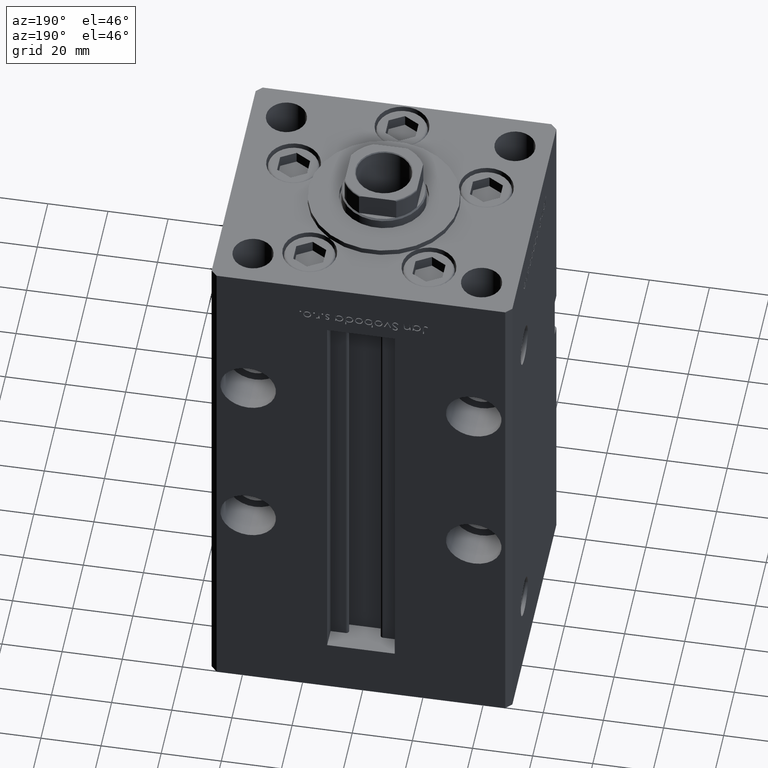
[diagram: clean part render]
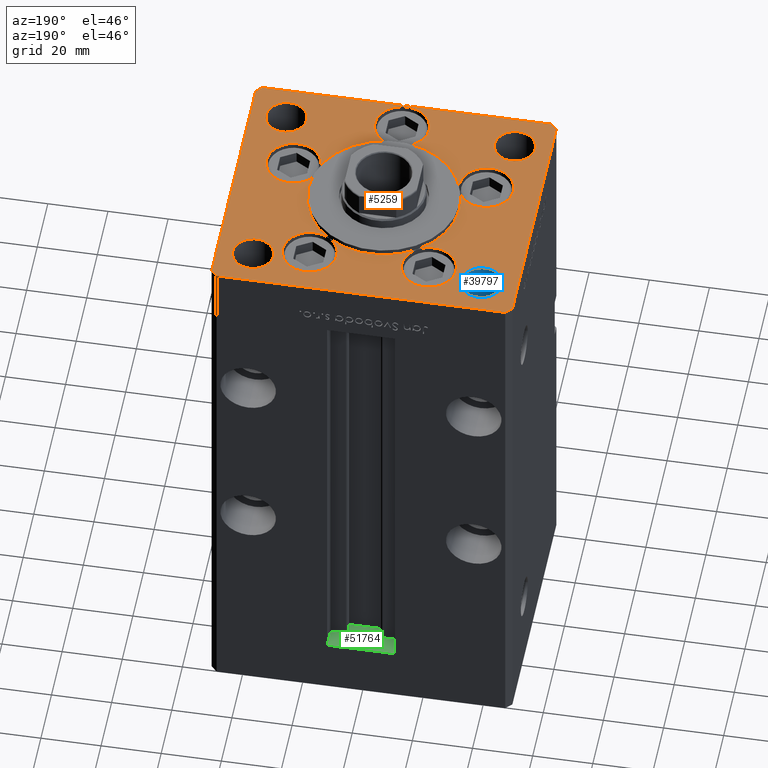
[diagram: same view with three faces highlighted in distinct colors, each labeled with its STEP entity id]
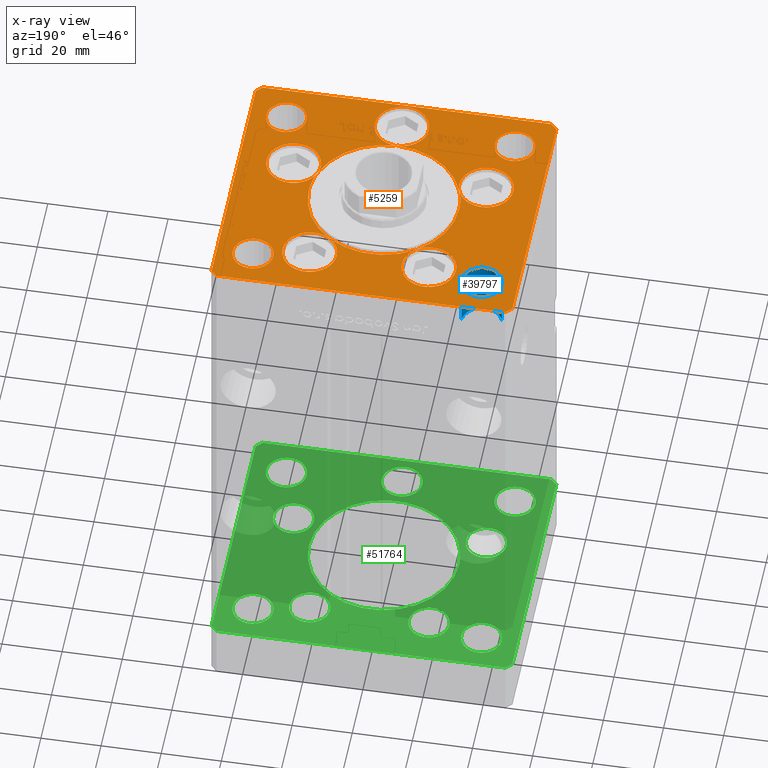
[diagram: x-ray of the same camera — body ghosted, the three highlighted faces saturated]
A machine part, auxiliary view with three faces highlighted in distinct colors.
The next image is the same camera in x-ray (body ghosted, the three faces saturated) — at least one of them is partly hidden behind the body in this view.
Their STEP definitions:

[orange] entity #5259 — the highlighted planar face has unit normal (0, 0, 1).
#68 = VECTOR ( 'NONE', #29147, 1000.000000000000000 ) ;
#321 = CARTESIAN_POINT ( 'NONE',  ( 0.000000000000000000, 0.000000000000000000, 0.000000000000000000 ) ) ;
#377 = AXIS2_PLACEMENT_3D ( 'NONE', #321, #8919, #49579 ) ;
#418 = EDGE_CURVE ( 'NONE', #45248, #31867, #51826, .T. ) ;
#662 = DIRECTION ( 'NONE',  ( 0.000000000000000000, 0.000000000000000000, 1.000000000000000000 ) ) ;
#666 = DIRECTION ( 'NONE',  ( 0.000000000000000000, 0.000000000000000000, 1.000000000000000000 ) ) ;
#838 = EDGE_CURVE ( 'NONE', #46048, #12266, #25994, .T. ) ;
#843 = EDGE_CURVE ( 'NONE', #38011, #34089, #5409, .T. ) ;
#1126 = ORIENTED_EDGE ( 'NONE', *, *, #29632, .F. ) ;
#1134 = CARTESIAN_POINT ( 'NONE',  ( 38.00000000000000000, 31.50000000000000000, 0.000000000000000000 ) ) ;
#1335 = CARTESIAN_POINT ( 'NONE',  ( 31.25000000000000711, -31.50000000000000711, 0.000000000000000000 ) ) ;
#1684 = ORIENTED_EDGE ( 'NONE', *, *, #33858, .F. ) ;
#1729 = AXIS2_PLACEMENT_3D ( 'NONE', #5760, #21356, #50442 ) ;
#1739 = CARTESIAN_POINT ( 'NONE',  ( -32.05550741379015989, -11.33333333333332860, 0.000000000000000000 ) ) ;
#1768 = DIRECTION ( 'NONE',  ( 1.000000000000000000, 1.156482317317871331E-15, 0.000000000000000000 ) ) ;
#1847 = VERTEX_POINT ( 'NONE', #48504 ) ;
#2025 = CARTESIAN_POINT ( 'NONE',  ( 50.00000000000000000, -41.49999999999992895, 0.000000000000000000 ) ) ;
#2576 = CARTESIAN_POINT ( 'NONE',  ( -14.57402977045128978, 20.31249999999999289, 0.000000000000000000 ) ) ;
#2629 = VERTEX_POINT ( 'NONE', #19502 ) ;
#2807 = CARTESIAN_POINT ( 'NONE',  ( 31.25000000000000000, 31.50000000000000000, 0.000000000000000000 ) ) ;
#3076 = DIRECTION ( 'NONE',  ( 0.000000000000000000, 0.000000000000000000, 1.000000000000000000 ) ) ;
#3161 = EDGE_CURVE ( 'NONE', #15595, #2629, #35570, .T. ) ;
#3368 = ORIENTED_EDGE ( 'NONE', *, *, #48313, .F. ) ;
#3389 = LINE ( 'NONE', #36220, #45601 ) ;
#3439 = CARTESIAN_POINT ( 'NONE',  ( 48.00000000000000711, -43.49999999999992184, 0.000000000000000000 ) ) ;
#3453 = CARTESIAN_POINT ( 'NONE',  ( -38.00000000000000000, 31.50000000000000000, 0.000000000000000000 ) ) ;
#3845 = CARTESIAN_POINT ( 'NONE',  ( 48.00000000000000711, -43.49999999999992184, 0.000000000000000000 ) ) ;
#3923 = CARTESIAN_POINT ( 'NONE',  ( 0.000000000000000000, -6.938893903907228378E-15, 0.000000000000000000 ) ) ;
#4069 = VERTEX_POINT ( 'NONE', #17913 ) ;
#4354 = FACE_BOUND ( 'NONE', #35737, .T. ) ;
#4609 = LINE ( 'NONE', #13215, #43333 ) ;
#4689 = CARTESIAN_POINT ( 'NONE',  ( -32.05550741379015989, -11.33333333333332860, 0.000000000000000000 ) ) ;
#4746 = VERTEX_POINT ( 'NONE', #32498 ) ;
#4749 = CIRCLE ( 'NONE', #29678, 25.00000000000000000 ) ;
#4775 = EDGE_CURVE ( 'NONE', #46257, #7906, #40333, .T. ) ;
#4935 = CIRCLE ( 'NONE', #27302, 9.000000000000000000 ) ;
#5259 = ADVANCED_FACE ( 'NONE', ( #25061, #4354, #32886, #24539, #8136, #13484 ), #29373, .T. ) ;
#5409 = CIRCLE ( 'NONE', #46639, 9.000000000000001776 ) ;
#5501 = CARTESIAN_POINT ( 'NONE',  ( -38.00000000000000711, -31.50000000000000711, 0.000000000000000000 ) ) ;
#5599 = DIRECTION ( 'NONE',  ( 1.000000000000000000, 0.000000000000000000, 0.000000000000000000 ) ) ;
#5760 = CARTESIAN_POINT ( 'NONE',  ( 38.00000000000000711, -31.50000000000000711, 0.000000000000000000 ) ) ;
#5804 = VECTOR ( 'NONE', #26836, 1000.000000000000000 ) ;
#5917 = AXIS2_PLACEMENT_3D ( 'NONE', #25303, #37965, #9173 ) ;
#6167 = DIRECTION ( 'NONE',  ( 1.000000000000000000, 0.000000000000000000, 0.000000000000000000 ) ) ;
#6229 = CARTESIAN_POINT ( 'NONE',  ( 0.000000000000000000, -34.00000000000000000, 0.000000000000000000 ) ) ;
#6805 = AXIS2_PLACEMENT_3D ( 'NONE', #31177, #13706, #30124 ) ;
#6912 = ORIENTED_EDGE ( 'NONE', *, *, #26754, .F. ) ;
#6927 = CARTESIAN_POINT ( 'NONE',  ( 19.82068048781374969, 27.62499999999998934, 0.000000000000000000 ) ) ;
#7063 = EDGE_CURVE ( 'NONE', #48332, #46257, #22211, .T. ) ;
#7065 = VERTEX_POINT ( 'NONE', #43196 ) ;
#7578 = EDGE_CURVE ( 'NONE', #2629, #15806, #20293, .T. ) ;
#7715 = DIRECTION ( 'NONE',  ( 0.000000000000000000, 0.000000000000000000, 1.000000000000000000 ) ) ;
#7765 = CARTESIAN_POINT ( 'NONE',  ( -44.75000000000000711, -31.50000000000000711, 0.000000000000000000 ) ) ;
#7906 = VERTEX_POINT ( 'NONE', #2025 ) ;
#8136 = FACE_OUTER_BOUND ( 'NONE', #49804, .T. ) ;
#8219 = DIRECTION ( 'NONE',  ( 0.000000000000000000, 0.000000000000000000, 1.000000000000000000 ) ) ;
#8375 = CIRCLE ( 'NONE', #49635, 6.749999999999999112 ) ;
#8415 = DIRECTION ( 'NONE',  ( 1.000000000000000000, 0.000000000000000000, 0.000000000000000000 ) ) ;
#8519 = CIRCLE ( 'NONE', #16251, 9.000000000000000000 ) ;
#8919 = DIRECTION ( 'NONE',  ( -0.000000000000000000, 0.000000000000000000, 1.000000000000000000 ) ) ;
#8966 = EDGE_CURVE ( 'NONE', #14184, #22544, #14056, .T. ) ;
#9173 = DIRECTION ( 'NONE',  ( 1.000000000000000000, 0.000000000000000000, 0.000000000000000000 ) ) ;
#9194 = CARTESIAN_POINT ( 'NONE',  ( -44.75000000000000000, 31.50000000000000000, 0.000000000000000000 ) ) ;
#9266 = EDGE_CURVE ( 'NONE', #7065, #16308, #9720, .T. ) ;
#9492 = ORIENTED_EDGE ( 'NONE', *, *, #33583, .F. ) ;
#9540 = CARTESIAN_POINT ( 'NONE',  ( -48.00000000000000711, -43.50000000000002842, 0.000000000000000000 ) ) ;
#9720 = LINE ( 'NONE', #50356, #51028 ) ;
#10001 = EDGE_CURVE ( 'NONE', #7906, #7065, #4609, .T. ) ;
#10154 = CARTESIAN_POINT ( 'NONE',  ( -31.25000000000000711, -31.50000000000000711, 0.000000000000000000 ) ) ;
#10398 = AXIS2_PLACEMENT_3D ( 'NONE', #6927, #44601, #43789 ) ;
#10648 = EDGE_CURVE ( 'NONE', #50694, #38756, #51907, .T. ) ;
#11149 = DIRECTION ( 'NONE',  ( 1.000000000000000000, 0.000000000000000000, 0.000000000000000000 ) ) ;
#11253 = ORIENTED_EDGE ( 'NONE', *, *, #7578, .F. ) ;
#11355 = CARTESIAN_POINT ( 'NONE',  ( 0.000000000000000000, -6.938893903907228378E-15, 0.000000000000000000 ) ) ;
#11681 = VERTEX_POINT ( 'NONE', #32061 ) ;
#11739 = ORIENTED_EDGE ( 'NONE', *, *, #23256, .F. ) ;
#11939 = DIRECTION ( 'NONE',  ( 1.000000000000000000, 0.000000000000000000, 0.000000000000000000 ) ) ;
#12186 = ORIENTED_EDGE ( 'NONE', *, *, #28374, .F. ) ;
#12261 = DIRECTION ( 'NONE',  ( 1.000000000000000000, 0.000000000000000000, 0.000000000000000000 ) ) ;
#12266 = VERTEX_POINT ( 'NONE', #10154 ) ;
#12283 = VERTEX_POINT ( 'NONE', #51594 ) ;
#12395 = CARTESIAN_POINT ( 'NONE',  ( -50.00000000000000711, 41.49999999999999289, 0.000000000000000000 ) ) ;
#12408 = EDGE_LOOP ( 'NONE', ( #28472, #39329 ) ) ;
#12746 = ORIENTED_EDGE ( 'NONE', *, *, #49141, .F. ) ;
#13020 = CARTESIAN_POINT ( 'NONE',  ( 0.000000000000000000, -34.00000000000000000, 0.000000000000000000 ) ) ;
#13135 = CARTESIAN_POINT ( 'NONE',  ( -19.82068048781374969, 27.62499999999998934, 0.000000000000000000 ) ) ;
#13215 = CARTESIAN_POINT ( 'NONE',  ( 50.00000000000000000, -41.49999999999992895, 0.000000000000000000 ) ) ;
#13319 = ORIENTED_EDGE ( 'NONE', *, *, #48668, .F. ) ;
#13417 = VERTEX_POINT ( 'NONE', #32995 ) ;
#13474 = DIRECTION ( 'NONE',  ( -0.7071067811865512365, 0.7071067811865439090, 0.000000000000000000 ) ) ;
#13484 = FACE_BOUND ( 'NONE', #20916, .T. ) ;
#13497 = DIRECTION ( 'NONE',  ( 0.000000000000000000, 0.000000000000000000, 1.000000000000000000 ) ) ;
#13706 = DIRECTION ( 'NONE',  ( 0.000000000000000000, 0.000000000000000000, 1.000000000000000000 ) ) ;
#14056 = CIRCLE ( 'NONE', #31225, 9.000000000000000000 ) ;
#14114 = CARTESIAN_POINT ( 'NONE',  ( 44.75000000000000000, 31.50000000000000000, 0.000000000000000000 ) ) ;
#14184 = VERTEX_POINT ( 'NONE', #18146 ) ;
#14430 = AXIS2_PLACEMENT_3D ( 'NONE', #43444, #3076, #11149 ) ;
#14619 = DIRECTION ( 'NONE',  ( 0.000000000000000000, 0.000000000000000000, 1.000000000000000000 ) ) ;
#14653 = CIRCLE ( 'NONE', #15559, 9.000000000000001776 ) ;
#14658 = CARTESIAN_POINT ( 'NONE',  ( 23.57022603955158502, -8.333333333333332149, 0.000000000000000000 ) ) ;
#14944 = CARTESIAN_POINT ( 'NONE',  ( 0.000000000000000000, -25.00000000000000000, 0.000000000000000000 ) ) ;
#14973 = DIRECTION ( 'NONE',  ( 0.000000000000000000, 0.000000000000000000, 1.000000000000000000 ) ) ;
#15084 = DIRECTION ( 'NONE',  ( -0.000000000000000000, -0.000000000000000000, -1.000000000000000000 ) ) ;
#15266 = EDGE_CURVE ( 'NONE', #16308, #11681, #47718, .T. ) ;
#15559 = AXIS2_PLACEMENT_3D ( 'NONE', #28406, #8219, #44840 ) ;
#15595 = VERTEX_POINT ( 'NONE', #30704 ) ;
#15806 = VERTEX_POINT ( 'NONE', #2576 ) ;
#15937 = CIRCLE ( 'NONE', #51172, 6.749999999999999112 ) ;
#16251 = AXIS2_PLACEMENT_3D ( 'NONE', #6229, #51454, #23168 ) ;
#16308 = VERTEX_POINT ( 'NONE', #37733 ) ;
#17701 = LINE ( 'NONE', #18768, #5804 ) ;
#17913 = CARTESIAN_POINT ( 'NONE',  ( 25.00000000000000000, -3.877276906038844941E-15, 0.000000000000000000 ) ) ;
#18106 = CARTESIAN_POINT ( 'NONE',  ( 10.82068048781375147, 27.62499999999998934, 0.000000000000000000 ) ) ;
#18146 = CARTESIAN_POINT ( 'NONE',  ( -9.000000000000000000, -34.00000000000000000, 0.000000000000000000 ) ) ;
#18192 = AXIS2_PLACEMENT_3D ( 'NONE', #43475, #43751, #22745 ) ;
#18361 = ORIENTED_EDGE ( 'NONE', *, *, #48070, .F. ) ;
#18429 = EDGE_CURVE ( 'NONE', #33046, #38424, #17701, .T. ) ;
#18768 = CARTESIAN_POINT ( 'NONE',  ( -50.00000000000000711, 41.49999999999999289, 0.000000000000000000 ) ) ;
#18772 = AXIS2_PLACEMENT_3D ( 'NONE', #4689, #662, #33491 ) ;
#19233 = AXIS2_PLACEMENT_3D ( 'NONE', #42474, #38162, #5599 ) ;
#19410 = VERTEX_POINT ( 'NONE', #42160 ) ;
#19480 = AXIS2_PLACEMENT_3D ( 'NONE', #30316, #26274, #42708 ) ;
#19502 = CARTESIAN_POINT ( 'NONE',  ( -28.82068048781374969, 27.62499999999998934, 0.000000000000000000 ) ) ;
#19655 = DIRECTION ( 'NONE',  ( -1.000000000000000000, 0.000000000000000000, 0.000000000000000000 ) ) ;
#19845 = DIRECTION ( 'NONE',  ( 0.7071067811865474617, 0.7071067811865474617, 0.000000000000000000 ) ) ;
#19888 = CIRCLE ( 'NONE', #37900, 25.00000000000000000 ) ;
#19996 = DIRECTION ( 'NONE',  ( 0.000000000000000000, 0.000000000000000000, 1.000000000000000000 ) ) ;
#20031 = DIRECTION ( 'NONE',  ( 1.000000000000000000, 0.000000000000000000, 0.000000000000000000 ) ) ;
#20293 = CIRCLE ( 'NONE', #50387, 9.000000000000000000 ) ;
#20316 = AXIS2_PLACEMENT_3D ( 'NONE', #26914, #15084, #19655 ) ;
#20849 = AXIS2_PLACEMENT_3D ( 'NONE', #3453, #53241, #36288 ) ;
#20916 = EDGE_LOOP ( 'NONE', ( #27206, #33027 ) ) ;
#21005 = ORIENTED_EDGE ( 'NONE', *, *, #3161, .F. ) ;
#21070 = CIRCLE ( 'NONE', #42575, 6.749999999999999112 ) ;
#21099 = DIRECTION ( 'NONE',  ( 0.000000000000000000, 0.000000000000000000, 1.000000000000000000 ) ) ;
#21356 = DIRECTION ( 'NONE',  ( -0.000000000000000000, -0.000000000000000000, -1.000000000000000000 ) ) ;
#21436 = EDGE_CURVE ( 'NONE', #36099, #38011, #24766, .T. ) ;
#21563 = CIRCLE ( 'NONE', #10398, 8.999999999999998224 ) ;
#21636 = CARTESIAN_POINT ( 'NONE',  ( -23.57022603955158502, -8.333333333333332149, 0.000000000000000000 ) ) ;
#21656 = CARTESIAN_POINT ( 'NONE',  ( -41.05550741379015989, -11.33333333333332682, 0.000000000000000000 ) ) ;
#21908 = DIRECTION ( 'NONE',  ( 1.000000000000000000, 0.000000000000000000, 0.000000000000000000 ) ) ;
#21962 = AXIS2_PLACEMENT_3D ( 'NONE', #25335, #13497, #29126 ) ;
#22211 = LINE ( 'NONE', #38641, #48666 ) ;
#22544 = VERTEX_POINT ( 'NONE', #31837 ) ;
#22745 = DIRECTION ( 'NONE',  ( 1.000000000000000000, 0.000000000000000000, 0.000000000000000000 ) ) ;
#23125 = EDGE_CURVE ( 'NONE', #34089, #36099, #29961, .T. ) ;
#23168 = DIRECTION ( 'NONE',  ( 1.000000000000000000, 0.000000000000000000, 0.000000000000000000 ) ) ;
#23256 = EDGE_CURVE ( 'NONE', #52519, #19410, #48887, .T. ) ;
#23612 = ORIENTED_EDGE ( 'NONE', *, *, #32393, .F. ) ;
#23664 = CIRCLE ( 'NONE', #21962, 9.000000000000000000 ) ;
#23819 = DIRECTION ( 'NONE',  ( 0.000000000000000000, 0.000000000000000000, 1.000000000000000000 ) ) ;
#23850 = VERTEX_POINT ( 'NONE', #1335 ) ;
#24058 = LINE ( 'NONE', #36438, #68 ) ;
#24171 = EDGE_CURVE ( 'NONE', #15806, #15595, #4935, .T. ) ;
#24539 = FACE_BOUND ( 'NONE', #12408, .T. ) ;
#24766 = CIRCLE ( 'NONE', #14430, 9.000000000000001776 ) ;
#24767 = CARTESIAN_POINT ( 'NONE',  ( 28.82068048781374969, 27.62499999999998934, 0.000000000000000000 ) ) ;
#25061 = FACE_BOUND ( 'NONE', #32228, .T. ) ;
#25208 = ORIENTED_EDGE ( 'NONE', *, *, #4775, .T. ) ;
#25303 = CARTESIAN_POINT ( 'NONE',  ( 0.000000000000000000, -6.938893903907228378E-15, 0.000000000000000000 ) ) ;
#25335 = CARTESIAN_POINT ( 'NONE',  ( 0.000000000000000000, -34.00000000000000000, 0.000000000000000000 ) ) ;
#25802 = ORIENTED_EDGE ( 'NONE', *, *, #33330, .T. ) ;
#25914 = ORIENTED_EDGE ( 'NONE', *, *, #18429, .T. ) ;
#25994 = CIRCLE ( 'NONE', #36349, 6.749999999999999112 ) ;
#26274 = DIRECTION ( 'NONE',  ( 0.000000000000000000, 0.000000000000000000, 1.000000000000000000 ) ) ;
#26539 = AXIS2_PLACEMENT_3D ( 'NONE', #50978, #14619, #42637 ) ;
#26739 = DIRECTION ( 'NONE',  ( 1.000000000000000000, 0.000000000000000000, 0.000000000000000000 ) ) ;
#26754 = EDGE_CURVE ( 'NONE', #38011, #30415, #39426, .T. ) ;
#26836 = DIRECTION ( 'NONE',  ( 8.360113137237620037E-17, -1.000000000000000000, 0.000000000000000000 ) ) ;
#26914 = CARTESIAN_POINT ( 'NONE',  ( -38.00000000000000000, 31.50000000000000000, 0.000000000000000000 ) ) ;
#27140 = CARTESIAN_POINT ( 'NONE',  ( 0.000000000000000000, -6.938893903907228378E-15, 0.000000000000000000 ) ) ;
#27206 = ORIENTED_EDGE ( 'NONE', *, *, #53215, .T. ) ;
#27302 = AXIS2_PLACEMENT_3D ( 'NONE', #48818, #19996, #11939 ) ;
#27447 = EDGE_CURVE ( 'NONE', #15806, #1847, #32578, .T. ) ;
#27621 = DIRECTION ( 'NONE',  ( 1.000000000000000000, 0.000000000000000000, 0.000000000000000000 ) ) ;
#27926 = ORIENTED_EDGE ( 'NONE', *, *, #843, .F. ) ;
#27966 = CIRCLE ( 'NONE', #46145, 8.999999999999998224 ) ;
#28108 = EDGE_CURVE ( 'NONE', #22544, #30415, #8519, .T. ) ;
#28149 = CARTESIAN_POINT ( 'NONE',  ( 0.000000000000000000, -6.938893903907228378E-15, 0.000000000000000000 ) ) ;
#28269 = CIRCLE ( 'NONE', #6805, 8.999999999999998224 ) ;
#28310 = ORIENTED_EDGE ( 'NONE', *, *, #36136, .F. ) ;
#28374 = EDGE_CURVE ( 'NONE', #4746, #43443, #28269, .T. ) ;
#28406 = CARTESIAN_POINT ( 'NONE',  ( 32.05550741379015989, -11.33333333333332860, 0.000000000000000000 ) ) ;
#28472 = ORIENTED_EDGE ( 'NONE', *, *, #48376, .F. ) ;
#28686 = AXIS2_PLACEMENT_3D ( 'NONE', #1134, #37994, #8415 ) ;
#28918 = CIRCLE ( 'NONE', #19480, 9.000000000000001776 ) ;
#29126 = DIRECTION ( 'NONE',  ( 1.000000000000000000, 0.000000000000000000, 0.000000000000000000 ) ) ;
#29147 = DIRECTION ( 'NONE',  ( -0.7071067811865536790, -0.7071067811865414665, 0.000000000000000000 ) ) ;
#29149 = CIRCLE ( 'NONE', #36046, 25.00000000000000000 ) ;
#29168 = DIRECTION ( 'NONE',  ( 0.000000000000000000, 0.000000000000000000, 1.000000000000000000 ) ) ;
#29373 = PLANE ( 'NONE',  #377 ) ;
#29514 = ORIENTED_EDGE ( 'NONE', *, *, #21436, .F. ) ;
#29632 = EDGE_CURVE ( 'NONE', #4069, #4746, #29149, .T. ) ;
#29678 = AXIS2_PLACEMENT_3D ( 'NONE', #28149, #7715, #12261 ) ;
#29961 = CIRCLE ( 'NONE', #18772, 9.000000000000001776 ) ;
#30073 = CIRCLE ( 'NONE', #1729, 6.749999999999999112 ) ;
#30124 = DIRECTION ( 'NONE',  ( 1.000000000000000000, 0.000000000000000000, 0.000000000000000000 ) ) ;
#30214 = AXIS2_PLACEMENT_3D ( 'NONE', #27140, #47340, #6167 ) ;
#30316 = CARTESIAN_POINT ( 'NONE',  ( 32.05550741379015989, -11.33333333333332860, 0.000000000000000000 ) ) ;
#30415 = VERTEX_POINT ( 'NONE', #14944 ) ;
#30636 = ORIENTED_EDGE ( 'NONE', *, *, #8966, .F. ) ;
#30643 = EDGE_CURVE ( 'NONE', #23850, #13417, #30073, .T. ) ;
#30704 = CARTESIAN_POINT ( 'NONE',  ( -10.82068048781375147, 27.62499999999998934, 0.000000000000000000 ) ) ;
#30933 = ORIENTED_EDGE ( 'NONE', *, *, #28108, .F. ) ;
#31177 = CARTESIAN_POINT ( 'NONE',  ( 19.82068048781374969, 27.62499999999998934, 0.000000000000000000 ) ) ;
#31225 = AXIS2_PLACEMENT_3D ( 'NONE', #13020, #29168, #45600 ) ;
#31338 = EDGE_CURVE ( 'NONE', #38424, #48332, #3389, .T. ) ;
#31837 = CARTESIAN_POINT ( 'NONE',  ( 9.000000000000000000, -34.00000000000000000, 0.000000000000000000 ) ) ;
#31867 = VERTEX_POINT ( 'NONE', #46077 ) ;
#32061 = CARTESIAN_POINT ( 'NONE',  ( -48.00000000000000000, 43.49999999999997158, 0.000000000000000000 ) ) ;
#32228 = EDGE_LOOP ( 'NONE', ( #12746, #3368, #1684, #12186, #1126, #9492, #23612, #18361, #11739, #28310, #30933, #30636, #13319, #6912, #29514, #46026, #27926, #52195, #44883, #11253, #21005, #46824 ) ) ;
#32247 = ORIENTED_EDGE ( 'NONE', *, *, #31338, .T. ) ;
#32318 = VECTOR ( 'NONE', #51500, 1000.000000000000000 ) ;
#32393 = EDGE_CURVE ( 'NONE', #12283, #52519, #14653, .T. ) ;
#32498 = CARTESIAN_POINT ( 'NONE',  ( 14.57402977045128623, 20.31249999999998579, 0.000000000000000000 ) ) ;
#32578 = CIRCLE ( 'NONE', #5917, 25.00000000000000000 ) ;
#32886 = FACE_BOUND ( 'NONE', #46224, .T. ) ;
#32995 = CARTESIAN_POINT ( 'NONE',  ( 44.75000000000000711, -31.50000000000000711, 0.000000000000000000 ) ) ;
#33027 = ORIENTED_EDGE ( 'NONE', *, *, #30643, .T. ) ;
#33046 = VERTEX_POINT ( 'NONE', #12395 ) ;
#33118 = ORIENTED_EDGE ( 'NONE', *, *, #15266, .T. ) ;
#33330 = EDGE_CURVE ( 'NONE', #11681, #33046, #24058, .T. ) ;
#33491 = DIRECTION ( 'NONE',  ( 1.000000000000000000, 0.000000000000000000, 0.000000000000000000 ) ) ;
#33583 = EDGE_CURVE ( 'NONE', #52519, #4069, #19888, .T. ) ;
#33858 = EDGE_CURVE ( 'NONE', #43443, #35037, #21563, .T. ) ;
#33871 = ORIENTED_EDGE ( 'NONE', *, *, #10001, .T. ) ;
#34089 = VERTEX_POINT ( 'NONE', #21656 ) ;
#35037 = VERTEX_POINT ( 'NONE', #18106 ) ;
#35073 = CARTESIAN_POINT ( 'NONE',  ( 0.000000000000000000, -6.938893903907228378E-15, 0.000000000000000000 ) ) ;
#35529 = DIRECTION ( 'NONE',  ( -1.000000000000000000, 0.000000000000000000, 0.000000000000000000 ) ) ;
#35557 = CARTESIAN_POINT ( 'NONE',  ( -50.00000000000000000, -41.50000000000004263, 0.000000000000000000 ) ) ;
#35570 = CIRCLE ( 'NONE', #19233, 9.000000000000000000 ) ;
#35737 = EDGE_LOOP ( 'NONE', ( #45590, #48442 ) ) ;
#36046 = AXIS2_PLACEMENT_3D ( 'NONE', #3923, #14973, #27621 ) ;
#36099 = VERTEX_POINT ( 'NONE', #36659 ) ;
#36136 = EDGE_CURVE ( 'NONE', #30415, #52519, #50007, .T. ) ;
#36220 = CARTESIAN_POINT ( 'NONE',  ( -50.00000000000000000, -41.50000000000004263, 0.000000000000000000 ) ) ;
#36288 = DIRECTION ( 'NONE',  ( -1.000000000000000000, 0.000000000000000000, 0.000000000000000000 ) ) ;
#36349 = AXIS2_PLACEMENT_3D ( 'NONE', #5501, #42916, #21908 ) ;
#36438 = CARTESIAN_POINT ( 'NONE',  ( -48.00000000000000000, 43.49999999999997158, 0.000000000000000000 ) ) ;
#36457 = VECTOR ( 'NONE', #19845, 1000.000000000000114 ) ;
#36659 = CARTESIAN_POINT ( 'NONE',  ( -23.05550741379015633, -11.33333333333332860, 0.000000000000000000 ) ) ;
#37214 = CIRCLE ( 'NONE', #30214, 25.00000000000000000 ) ;
#37733 = CARTESIAN_POINT ( 'NONE',  ( 47.99999999999999289, 43.50000000000000000, 0.000000000000000000 ) ) ;
#37853 = ORIENTED_EDGE ( 'NONE', *, *, #10648, .F. ) ;
#37900 = AXIS2_PLACEMENT_3D ( 'NONE', #11355, #39894, #47165 ) ;
#37965 = DIRECTION ( 'NONE',  ( 0.000000000000000000, 0.000000000000000000, 1.000000000000000000 ) ) ;
#37994 = DIRECTION ( 'NONE',  ( 0.000000000000000000, 0.000000000000000000, 1.000000000000000000 ) ) ;
#38011 = VERTEX_POINT ( 'NONE', #21636 ) ;
#38162 = DIRECTION ( 'NONE',  ( 0.000000000000000000, 0.000000000000000000, 1.000000000000000000 ) ) ;
#38338 = CARTESIAN_POINT ( 'NONE',  ( 19.82068048781374969, 27.62499999999998934, 0.000000000000000000 ) ) ;
#38341 = DIRECTION ( 'NONE',  ( 0.000000000000000000, 0.000000000000000000, 1.000000000000000000 ) ) ;
#38424 = VERTEX_POINT ( 'NONE', #35557 ) ;
#38641 = CARTESIAN_POINT ( 'NONE',  ( -48.00000000000000711, -43.50000000000002842, 0.000000000000000000 ) ) ;
#38695 = EDGE_CURVE ( 'NONE', #1847, #38011, #37214, .T. ) ;
#38756 = VERTEX_POINT ( 'NONE', #2807 ) ;
#39329 = ORIENTED_EDGE ( 'NONE', *, *, #838, .F. ) ;
#39391 = CARTESIAN_POINT ( 'NONE',  ( 47.99999999999999289, 43.50000000000000000, 0.000000000000000000 ) ) ;
#39426 = CIRCLE ( 'NONE', #41155, 25.00000000000000000 ) ;
#39894 = DIRECTION ( 'NONE',  ( 0.000000000000000000, 0.000000000000000000, 1.000000000000000000 ) ) ;
#40333 = LINE ( 'NONE', #3439, #36457 ) ;
#41155 = AXIS2_PLACEMENT_3D ( 'NONE', #35073, #51505, #47458 ) ;
#41682 = ORIENTED_EDGE ( 'NONE', *, *, #44154, .F. ) ;
#41944 = DIRECTION ( 'NONE',  ( 0.000000000000000000, 0.000000000000000000, 1.000000000000000000 ) ) ;
#42160 = CARTESIAN_POINT ( 'NONE',  ( 23.05550741379015633, -11.33333333333332682, 0.000000000000000000 ) ) ;
#42474 = CARTESIAN_POINT ( 'NONE',  ( -19.82068048781374969, 27.62499999999998934, 0.000000000000000000 ) ) ;
#42575 = AXIS2_PLACEMENT_3D ( 'NONE', #48318, #23819, #20031 ) ;
#42637 = DIRECTION ( 'NONE',  ( 1.000000000000000000, 0.000000000000000000, 0.000000000000000000 ) ) ;
#42708 = DIRECTION ( 'NONE',  ( 1.000000000000000000, 0.000000000000000000, 0.000000000000000000 ) ) ;
#42916 = DIRECTION ( 'NONE',  ( 0.000000000000000000, 0.000000000000000000, 1.000000000000000000 ) ) ;
#43196 = CARTESIAN_POINT ( 'NONE',  ( 50.00000000000000000, 41.50000000000000711, 0.000000000000000000 ) ) ;
#43333 = VECTOR ( 'NONE', #49577, 1000.000000000000000 ) ;
#43443 = VERTEX_POINT ( 'NONE', #24767 ) ;
#43444 = CARTESIAN_POINT ( 'NONE',  ( -32.05550741379015989, -11.33333333333332860, 0.000000000000000000 ) ) ;
#43475 = CARTESIAN_POINT ( 'NONE',  ( 0.000000000000000000, -6.938893903907228378E-15, 0.000000000000000000 ) ) ;
#43593 = ORIENTED_EDGE ( 'NONE', *, *, #7063, .T. ) ;
#43751 = DIRECTION ( 'NONE',  ( 0.000000000000000000, 0.000000000000000000, 1.000000000000000000 ) ) ;
#43789 = DIRECTION ( 'NONE',  ( 1.000000000000000000, 0.000000000000000000, 0.000000000000000000 ) ) ;
#44037 = DIRECTION ( 'NONE',  ( 0.7071067811865487940, -0.7071067811865463515, 0.000000000000000000 ) ) ;
#44154 = EDGE_CURVE ( 'NONE', #38756, #50694, #21070, .T. ) ;
#44427 = CIRCLE ( 'NONE', #20316, 6.749999999999999112 ) ;
#44601 = DIRECTION ( 'NONE',  ( 0.000000000000000000, 0.000000000000000000, 1.000000000000000000 ) ) ;
#44840 = DIRECTION ( 'NONE',  ( 1.000000000000000000, 0.000000000000000000, 0.000000000000000000 ) ) ;
#44883 = ORIENTED_EDGE ( 'NONE', *, *, #27447, .F. ) ;
#45248 = VERTEX_POINT ( 'NONE', #9194 ) ;
#45590 = ORIENTED_EDGE ( 'NONE', *, *, #47442, .T. ) ;
#45600 = DIRECTION ( 'NONE',  ( 1.000000000000000000, 0.000000000000000000, 0.000000000000000000 ) ) ;
#45601 = VECTOR ( 'NONE', #44037, 1000.000000000000000 ) ;
#45878 = DIRECTION ( 'NONE',  ( 1.000000000000000000, 0.000000000000000000, 0.000000000000000000 ) ) ;
#46026 = ORIENTED_EDGE ( 'NONE', *, *, #23125, .F. ) ;
#46048 = VERTEX_POINT ( 'NONE', #7765 ) ;
#46077 = CARTESIAN_POINT ( 'NONE',  ( -31.25000000000000000, 31.50000000000000000, 0.000000000000000000 ) ) ;
#46145 = AXIS2_PLACEMENT_3D ( 'NONE', #38338, #666, #45878 ) ;
#46224 = EDGE_LOOP ( 'NONE', ( #37853, #41682 ) ) ;
#46257 = VERTEX_POINT ( 'NONE', #3845 ) ;
#46409 = DIRECTION ( 'NONE',  ( 1.000000000000000000, 0.000000000000000000, 0.000000000000000000 ) ) ;
#46639 = AXIS2_PLACEMENT_3D ( 'NONE', #1739, #38341, #26739 ) ;
#46674 = CARTESIAN_POINT ( 'NONE',  ( -38.00000000000000711, -31.50000000000000711, 0.000000000000000000 ) ) ;
#46824 = ORIENTED_EDGE ( 'NONE', *, *, #24171, .F. ) ;
#47165 = DIRECTION ( 'NONE',  ( 1.000000000000000000, 0.000000000000000000, 0.000000000000000000 ) ) ;
#47340 = DIRECTION ( 'NONE',  ( 0.000000000000000000, 0.000000000000000000, 1.000000000000000000 ) ) ;
#47442 = EDGE_CURVE ( 'NONE', #31867, #45248, #44427, .T. ) ;
#47458 = DIRECTION ( 'NONE',  ( 1.000000000000000000, 0.000000000000000000, 0.000000000000000000 ) ) ;
#47718 = LINE ( 'NONE', #39391, #32318 ) ;
#48070 = EDGE_CURVE ( 'NONE', #19410, #12283, #28918, .T. ) ;
#48313 = EDGE_CURVE ( 'NONE', #35037, #4746, #27966, .T. ) ;
#48318 = CARTESIAN_POINT ( 'NONE',  ( 38.00000000000000000, 31.50000000000000000, 0.000000000000000000 ) ) ;
#48332 = VERTEX_POINT ( 'NONE', #9540 ) ;
#48376 = EDGE_CURVE ( 'NONE', #12266, #46048, #15937, .T. ) ;
#48442 = ORIENTED_EDGE ( 'NONE', *, *, #418, .T. ) ;
#48504 = CARTESIAN_POINT ( 'NONE',  ( -25.00000000000000000, -6.938893903907228378E-15, 0.000000000000000000 ) ) ;
#48666 = VECTOR ( 'NONE', #1768, 1000.000000000000000 ) ;
#48668 = EDGE_CURVE ( 'NONE', #30415, #14184, #23664, .T. ) ;
#48818 = CARTESIAN_POINT ( 'NONE',  ( -19.82068048781374969, 27.62499999999998934, 0.000000000000000000 ) ) ;
#48887 = CIRCLE ( 'NONE', #26539, 9.000000000000001776 ) ;
#49141 = EDGE_CURVE ( 'NONE', #4746, #15806, #4749, .T. ) ;
#49577 = DIRECTION ( 'NONE',  ( 0.000000000000000000, 1.000000000000000000, 0.000000000000000000 ) ) ;
#49579 = DIRECTION ( 'NONE',  ( 1.000000000000000000, 0.000000000000000000, 0.000000000000000000 ) ) ;
#49635 = AXIS2_PLACEMENT_3D ( 'NONE', #53020, #52755, #35529 ) ;
#49759 = DIRECTION ( 'NONE',  ( 1.000000000000000000, 0.000000000000000000, 0.000000000000000000 ) ) ;
#49804 = EDGE_LOOP ( 'NONE', ( #32247, #43593, #25208, #33871, #53193, #33118, #25802, #25914 ) ) ;
#50007 = CIRCLE ( 'NONE', #18192, 25.00000000000000000 ) ;
#50356 = CARTESIAN_POINT ( 'NONE',  ( 50.00000000000000000, 41.50000000000000711, 0.000000000000000000 ) ) ;
#50387 = AXIS2_PLACEMENT_3D ( 'NONE', #13135, #41944, #49759 ) ;
#50442 = DIRECTION ( 'NONE',  ( -1.000000000000000000, 0.000000000000000000, 0.000000000000000000 ) ) ;
#50694 = VERTEX_POINT ( 'NONE', #14114 ) ;
#50978 = CARTESIAN_POINT ( 'NONE',  ( 32.05550741379015989, -11.33333333333332860, 0.000000000000000000 ) ) ;
#51028 = VECTOR ( 'NONE', #13474, 999.9999999999998863 ) ;
#51172 = AXIS2_PLACEMENT_3D ( 'NONE', #46674, #21099, #46409 ) ;
#51454 = DIRECTION ( 'NONE',  ( 0.000000000000000000, 0.000000000000000000, 1.000000000000000000 ) ) ;
#51500 = DIRECTION ( 'NONE',  ( -1.000000000000000000, -2.891205793294678326E-16, 0.000000000000000000 ) ) ;
#51505 = DIRECTION ( 'NONE',  ( 0.000000000000000000, 0.000000000000000000, 1.000000000000000000 ) ) ;
#51594 = CARTESIAN_POINT ( 'NONE',  ( 41.05550741379015989, -11.33333333333332860, 0.000000000000000000 ) ) ;
#51826 = CIRCLE ( 'NONE', #20849, 6.749999999999999112 ) ;
#51907 = CIRCLE ( 'NONE', #28686, 6.749999999999999112 ) ;
#52195 = ORIENTED_EDGE ( 'NONE', *, *, #38695, .F. ) ;
#52519 = VERTEX_POINT ( 'NONE', #14658 ) ;
#52755 = DIRECTION ( 'NONE',  ( -0.000000000000000000, -0.000000000000000000, -1.000000000000000000 ) ) ;
#53020 = CARTESIAN_POINT ( 'NONE',  ( 38.00000000000000711, -31.50000000000000711, 0.000000000000000000 ) ) ;
#53193 = ORIENTED_EDGE ( 'NONE', *, *, #9266, .T. ) ;
#53215 = EDGE_CURVE ( 'NONE', #13417, #23850, #8375, .T. ) ;
#53241 = DIRECTION ( 'NONE',  ( -0.000000000000000000, -0.000000000000000000, -1.000000000000000000 ) ) ;

[blue] entity #39797 — the highlighted cylindrical surface (edge-blend (fillet) strip) has radius 6.75 mm, axis along (0, 0, 1).
#178 = VECTOR ( 'NONE', #38399, 1000.000000000000000 ) ;
#751 = CARTESIAN_POINT ( 'NONE',  ( -44.75000000000000000, 31.50000000000000000, -19.00000000000000000 ) ) ;
#1797 = CARTESIAN_POINT ( 'NONE',  ( -31.25000000000000000, 31.50000000000000000, -19.00000000000000000 ) ) ;
#2632 = EDGE_LOOP ( 'NONE', ( #20730, #28090, #26936, #14580 ) ) ;
#3544 = DIRECTION ( 'NONE',  ( 1.000000000000000000, 0.000000000000000000, 0.000000000000000000 ) ) ;
#4481 = CARTESIAN_POINT ( 'NONE',  ( -31.25000000000000000, 31.50000000000000000, -19.00000000000000000 ) ) ;
#4831 = VERTEX_POINT ( 'NONE', #4481 ) ;
#4980 = VECTOR ( 'NONE', #21446, 1000.000000000000000 ) ;
#5884 = CIRCLE ( 'NONE', #41122, 6.749999999999999112 ) ;
#7070 = FACE_OUTER_BOUND ( 'NONE', #2632, .T. ) ;
#7601 = CARTESIAN_POINT ( 'NONE',  ( -38.00000000000000000, 31.50000000000000000, -19.00000000000000000 ) ) ;
#7788 = CARTESIAN_POINT ( 'NONE',  ( -38.00000000000000000, 31.50000000000000000, -19.00000000000000000 ) ) ;
#8560 = LINE ( 'NONE', #751, #4980 ) ;
#9194 = CARTESIAN_POINT ( 'NONE',  ( -44.75000000000000000, 31.50000000000000000, 0.000000000000000000 ) ) ;
#14580 = ORIENTED_EDGE ( 'NONE', *, *, #36887, .F. ) ;
#15084 = DIRECTION ( 'NONE',  ( -0.000000000000000000, -0.000000000000000000, -1.000000000000000000 ) ) ;
#17278 = VERTEX_POINT ( 'NONE', #43872 ) ;
#17655 = LINE ( 'NONE', #1797, #178 ) ;
#19153 = AXIS2_PLACEMENT_3D ( 'NONE', #7601, #40437, #3544 ) ;
#19655 = DIRECTION ( 'NONE',  ( -1.000000000000000000, 0.000000000000000000, 0.000000000000000000 ) ) ;
#20316 = AXIS2_PLACEMENT_3D ( 'NONE', #26914, #15084, #19655 ) ;
#20730 = ORIENTED_EDGE ( 'NONE', *, *, #22093, .T. ) ;
#21446 = DIRECTION ( 'NONE',  ( -0.000000000000000000, -0.000000000000000000, 1.000000000000000000 ) ) ;
#22093 = EDGE_CURVE ( 'NONE', #4831, #17278, #5884, .T. ) ;
#24440 = DIRECTION ( 'NONE',  ( -0.000000000000000000, -0.000000000000000000, -1.000000000000000000 ) ) ;
#24941 = EDGE_CURVE ( 'NONE', #17278, #45248, #8560, .T. ) ;
#26914 = CARTESIAN_POINT ( 'NONE',  ( -38.00000000000000000, 31.50000000000000000, 0.000000000000000000 ) ) ;
#26936 = ORIENTED_EDGE ( 'NONE', *, *, #47442, .F. ) ;
#26951 = CYLINDRICAL_SURFACE ( 'NONE', #19153, 6.749999999999999112 ) ;
#28090 = ORIENTED_EDGE ( 'NONE', *, *, #24941, .T. ) ;
#31867 = VERTEX_POINT ( 'NONE', #46077 ) ;
#36887 = EDGE_CURVE ( 'NONE', #4831, #31867, #17655, .T. ) ;
#38399 = DIRECTION ( 'NONE',  ( -0.000000000000000000, -0.000000000000000000, 1.000000000000000000 ) ) ;
#39797 = ADVANCED_FACE ( 'NONE', ( #7070 ), #26951, .F. ) ;
#40437 = DIRECTION ( 'NONE',  ( -0.000000000000000000, -0.000000000000000000, 1.000000000000000000 ) ) ;
#41122 = AXIS2_PLACEMENT_3D ( 'NONE', #7788, #24440, #52471 ) ;
#43872 = CARTESIAN_POINT ( 'NONE',  ( -44.75000000000000000, 31.50000000000000000, -19.00000000000000000 ) ) ;
#44427 = CIRCLE ( 'NONE', #20316, 6.749999999999999112 ) ;
#45248 = VERTEX_POINT ( 'NONE', #9194 ) ;
#46077 = CARTESIAN_POINT ( 'NONE',  ( -31.25000000000000000, 31.50000000000000000, 0.000000000000000000 ) ) ;
#47442 = EDGE_CURVE ( 'NONE', #31867, #45248, #44427, .T. ) ;
#52471 = DIRECTION ( 'NONE',  ( -1.000000000000000000, 0.000000000000000000, 0.000000000000000000 ) ) ;

[green] entity #51764 — the highlighted planar face has unit normal (0, 0, -1).
#120 = EDGE_CURVE ( 'NONE', #34690, #22652, #229, .T. ) ;
#229 = CIRCLE ( 'NONE', #28610, 6.749999999999999112 ) ;
#351 = ORIENTED_EDGE ( 'NONE', *, *, #32617, .F. ) ;
#379 = CARTESIAN_POINT ( 'NONE',  ( -25.00000000000000000, 3.061616997868382254E-15, -19.00000000000000000 ) ) ;
#544 = DIRECTION ( 'NONE',  ( 0.000000000000000000, -0.000000000000000000, -1.000000000000000000 ) ) ;
#607 = EDGE_CURVE ( 'NONE', #26821, #2535, #2806, .T. ) ;
#633 = FACE_BOUND ( 'NONE', #50235, .T. ) ;
#705 = EDGE_CURVE ( 'NONE', #19122, #8954, #38063, .T. ) ;
#1277 = DIRECTION ( 'NONE',  ( 1.000000000000000000, 0.000000000000000000, 0.000000000000000000 ) ) ;
#1500 = ORIENTED_EDGE ( 'NONE', *, *, #21860, .F. ) ;
#1653 = CARTESIAN_POINT ( 'NONE',  ( -44.75000000000000000, 31.50000000000000000, -19.00000000000000000 ) ) ;
#1769 = AXIS2_PLACEMENT_3D ( 'NONE', #18132, #26477, #42369 ) ;
#1771 = ORIENTED_EDGE ( 'NONE', *, *, #607, .F. ) ;
#1871 = CIRCLE ( 'NONE', #27680, 6.749999999999999112 ) ;
#1960 = AXIS2_PLACEMENT_3D ( 'NONE', #24619, #7174, #41062 ) ;
#2003 = DIRECTION ( 'NONE',  ( 1.000000000000000000, 0.000000000000000000, 0.000000000000000000 ) ) ;
#2117 = CIRCLE ( 'NONE', #4715, 25.00000000000000000 ) ;
#2168 = CARTESIAN_POINT ( 'NONE',  ( -31.24999999999999289, -31.50000000000000000, -19.00000000000000000 ) ) ;
#2192 = LINE ( 'NONE', #17799, #42521 ) ;
#2264 = ORIENTED_EDGE ( 'NONE', *, *, #2719, .F. ) ;
#2333 = LINE ( 'NONE', #9884, #37413 ) ;
#2535 = VERTEX_POINT ( 'NONE', #38369 ) ;
#2719 = EDGE_CURVE ( 'NONE', #44416, #10565, #12224, .T. ) ;
#2806 = CIRCLE ( 'NONE', #42338, 6.749999999999999112 ) ;
#3002 = CIRCLE ( 'NONE', #21035, 6.749999999999999112 ) ;
#3459 = CIRCLE ( 'NONE', #1769, 6.749999999999999112 ) ;
#3600 = ORIENTED_EDGE ( 'NONE', *, *, #40651, .F. ) ;
#3794 = CARTESIAN_POINT ( 'NONE',  ( 32.05550741379015278, -11.33333333333333037, -19.00000000000000000 ) ) ;
#4032 = CARTESIAN_POINT ( 'NONE',  ( 47.99999999999990763, 43.50000000000000000, -19.00000000000000000 ) ) ;
#4358 = VERTEX_POINT ( 'NONE', #2168 ) ;
#4715 = AXIS2_PLACEMENT_3D ( 'NONE', #40661, #20451, #43905 ) ;
#4798 = CARTESIAN_POINT ( 'NONE',  ( 38.00000000000000000, -31.49999999999999289, -19.00000000000000000 ) ) ;
#4804 = VERTEX_POINT ( 'NONE', #42419 ) ;
#4922 = FACE_BOUND ( 'NONE', #41437, .T. ) ;
#4973 = CARTESIAN_POINT ( 'NONE',  ( 38.80550741379015278, -11.33333333333333037, -19.00000000000000000 ) ) ;
#5564 = DIRECTION ( 'NONE',  ( -1.000000000000000000, 0.000000000000000000, 0.000000000000000000 ) ) ;
#5643 = DIRECTION ( 'NONE',  ( 1.000000000000000000, 0.000000000000000000, 0.000000000000000000 ) ) ;
#5723 = CARTESIAN_POINT ( 'NONE',  ( -38.80550741379015278, -11.33333333333333925, -19.00000000000000000 ) ) ;
#6002 = EDGE_CURVE ( 'NONE', #24324, #41002, #2192, .T. ) ;
#6706 = CARTESIAN_POINT ( 'NONE',  ( 31.25000000000000000, 31.49999999999999289, -19.00000000000000000 ) ) ;
#6983 = CARTESIAN_POINT ( 'NONE',  ( -19.82068048781373903, 27.62499999999999645, -19.00000000000000000 ) ) ;
#7174 = DIRECTION ( 'NONE',  ( 0.000000000000000000, -0.000000000000000000, -1.000000000000000000 ) ) ;
#8368 = DIRECTION ( 'NONE',  ( 0.000000000000000000, -0.000000000000000000, -1.000000000000000000 ) ) ;
#8702 = ORIENTED_EDGE ( 'NONE', *, *, #6002, .F. ) ;
#8745 = VERTEX_POINT ( 'NONE', #11478 ) ;
#8954 = VERTEX_POINT ( 'NONE', #379 ) ;
#9507 = FACE_BOUND ( 'NONE', #40050, .T. ) ;
#9519 = AXIS2_PLACEMENT_3D ( 'NONE', #6983, #16759, #44534 ) ;
#9550 = DIRECTION ( 'NONE',  ( 0.000000000000000000, -0.000000000000000000, -1.000000000000000000 ) ) ;
#9638 = EDGE_CURVE ( 'NONE', #41002, #37851, #26256, .T. ) ;
#9884 = CARTESIAN_POINT ( 'NONE',  ( -48.00000000000000711, 43.49999999999996447, -19.00000000000000000 ) ) ;
#10011 = DIRECTION ( 'NONE',  ( 1.000000000000000000, 0.000000000000000000, 0.000000000000000000 ) ) ;
#10104 = AXIS2_PLACEMENT_3D ( 'NONE', #21439, #50248, #5564 ) ;
#10173 = CIRCLE ( 'NONE', #38536, 6.749999999999999112 ) ;
#10565 = VERTEX_POINT ( 'NONE', #12180 ) ;
#10889 = CARTESIAN_POINT ( 'NONE',  ( 25.30550741379015278, -11.33333333333333037, -19.00000000000000000 ) ) ;
#11064 = CIRCLE ( 'NONE', #46293, 6.749999999999999112 ) ;
#11478 = CARTESIAN_POINT ( 'NONE',  ( -6.749999999999994671, -34.00000000000000000, -19.00000000000000000 ) ) ;
#11482 = LINE ( 'NONE', #24637, #27073 ) ;
#11485 = VECTOR ( 'NONE', #34267, 1000.000000000000000 ) ;
#11854 = EDGE_CURVE ( 'NONE', #13602, #28747, #50255, .T. ) ;
#11877 = AXIS2_PLACEMENT_3D ( 'NONE', #49272, #8368, #21521 ) ;
#11972 = ORIENTED_EDGE ( 'NONE', *, *, #49024, .T. ) ;
#12093 = DIRECTION ( 'NONE',  ( -0.000000000000000000, -0.000000000000000000, -1.000000000000000000 ) ) ;
#12180 = CARTESIAN_POINT ( 'NONE',  ( 50.00000000000000000, -41.49999999999999289, -19.00000000000000000 ) ) ;
#12224 = LINE ( 'NONE', #17299, #11485 ) ;
#12577 = EDGE_LOOP ( 'NONE', ( #29924, #8702, #32920, #18909, #3600, #28094, #2264, #21658 ) ) ;
#12861 = EDGE_CURVE ( 'NONE', #28747, #13602, #3002, .T. ) ;
#12938 = AXIS2_PLACEMENT_3D ( 'NONE', #30793, #9550, #2003 ) ;
#12989 = CARTESIAN_POINT ( 'NONE',  ( -50.00000000000000711, 41.49999999999995026, -19.00000000000000000 ) ) ;
#13279 = EDGE_CURVE ( 'NONE', #10565, #26565, #11482, .T. ) ;
#13602 = VERTEX_POINT ( 'NONE', #10889 ) ;
#13713 = CARTESIAN_POINT ( 'NONE',  ( 32.05550741379015278, -11.33333333333333037, -19.00000000000000000 ) ) ;
#14172 = EDGE_LOOP ( 'NONE', ( #23955, #22926 ) ) ;
#14204 = DIRECTION ( 'NONE',  ( 1.000000000000000000, 0.000000000000000000, 0.000000000000000000 ) ) ;
#14296 = CARTESIAN_POINT ( 'NONE',  ( 38.00000000000000000, 31.49999999999999289, -19.00000000000000000 ) ) ;
#14420 = CARTESIAN_POINT ( 'NONE',  ( 19.82068048781373193, 27.62500000000000000, -19.00000000000000000 ) ) ;
#14523 = VERTEX_POINT ( 'NONE', #52288 ) ;
#14893 = CARTESIAN_POINT ( 'NONE',  ( 44.75000000000000000, -31.49999999999999289, -19.00000000000000000 ) ) ;
#16176 = ORIENTED_EDGE ( 'NONE', *, *, #12861, .F. ) ;
#16187 = EDGE_CURVE ( 'NONE', #24445, #4358, #34076, .T. ) ;
#16461 = CARTESIAN_POINT ( 'NONE',  ( -38.00000000000000000, 31.50000000000000000, -19.00000000000000000 ) ) ;
#16474 = CARTESIAN_POINT ( 'NONE',  ( -37.99999999999999289, -31.50000000000000000, -19.00000000000000000 ) ) ;
#16759 = DIRECTION ( 'NONE',  ( 0.000000000000000000, -0.000000000000000000, -1.000000000000000000 ) ) ;
#17031 = CARTESIAN_POINT ( 'NONE',  ( 0.000000000000000000, 0.000000000000000000, -19.00000000000000000 ) ) ;
#17299 = CARTESIAN_POINT ( 'NONE',  ( 47.99999999999999289, -43.50000000000001421, -19.00000000000000000 ) ) ;
#17535 = DIRECTION ( 'NONE',  ( 0.000000000000000000, 0.000000000000000000, 1.000000000000000000 ) ) ;
#17768 = LINE ( 'NONE', #50626, #45708 ) ;
#17799 = CARTESIAN_POINT ( 'NONE',  ( -50.00000000000000711, 41.49999999999995026, -19.00000000000000000 ) ) ;
#17992 = CARTESIAN_POINT ( 'NONE',  ( 25.00000000000000000, 0.000000000000000000, -19.00000000000000000 ) ) ;
#18132 = CARTESIAN_POINT ( 'NONE',  ( 38.00000000000000000, -31.49999999999999289, -19.00000000000000000 ) ) ;
#18181 = CARTESIAN_POINT ( 'NONE',  ( -50.00000000000000000, -41.50000000000000000, -19.00000000000000000 ) ) ;
#18433 = VERTEX_POINT ( 'NONE', #34132 ) ;
#18582 = AXIS2_PLACEMENT_3D ( 'NONE', #48281, #44514, #19731 ) ;
#18909 = ORIENTED_EDGE ( 'NONE', *, *, #35307, .F. ) ;
#18971 = ORIENTED_EDGE ( 'NONE', *, *, #40907, .F. ) ;
#19077 = EDGE_LOOP ( 'NONE', ( #18971, #30281 ) ) ;
#19122 = VERTEX_POINT ( 'NONE', #17992 ) ;
#19189 = CARTESIAN_POINT ( 'NONE',  ( 4.163799117101000559E-15, -34.00000000000000000, -19.00000000000000000 ) ) ;
#19242 = ORIENTED_EDGE ( 'NONE', *, *, #33288, .F. ) ;
#19272 = EDGE_LOOP ( 'NONE', ( #1500, #1771 ) ) ;
#19731 = DIRECTION ( 'NONE',  ( 1.000000000000000000, 0.000000000000000000, 0.000000000000000000 ) ) ;
#20166 = EDGE_CURVE ( 'NONE', #4358, #24445, #42802, .T. ) ;
#20205 = DIRECTION ( 'NONE',  ( 0.000000000000000000, -0.000000000000000000, -1.000000000000000000 ) ) ;
#20245 = CARTESIAN_POINT ( 'NONE',  ( 13.07068048781373015, 27.62500000000000000, -19.00000000000000000 ) ) ;
#20451 = DIRECTION ( 'NONE',  ( 0.000000000000000000, -0.000000000000000000, -1.000000000000000000 ) ) ;
#20520 = DIRECTION ( 'NONE',  ( -0.000000000000000000, -0.000000000000000000, -1.000000000000000000 ) ) ;
#21035 = AXIS2_PLACEMENT_3D ( 'NONE', #3794, #20205, #40948 ) ;
#21037 = ORIENTED_EDGE ( 'NONE', *, *, #23194, .F. ) ;
#21064 = FACE_BOUND ( 'NONE', #14172, .T. ) ;
#21207 = DIRECTION ( 'NONE',  ( -1.000000000000000000, 0.000000000000000000, 0.000000000000000000 ) ) ;
#21230 = CARTESIAN_POINT ( 'NONE',  ( -31.25000000000000000, 31.50000000000000000, -19.00000000000000000 ) ) ;
#21321 = ORIENTED_EDGE ( 'NONE', *, *, #11854, .F. ) ;
#21420 = CARTESIAN_POINT ( 'NONE',  ( -32.05550741379015278, -11.33333333333333925, -19.00000000000000000 ) ) ;
#21439 = CARTESIAN_POINT ( 'NONE',  ( -37.99999999999999289, -31.50000000000000000, -19.00000000000000000 ) ) ;
#21472 = CARTESIAN_POINT ( 'NONE',  ( -50.00000000000000000, -41.50000000000000000, -19.00000000000000000 ) ) ;
#21521 = DIRECTION ( 'NONE',  ( 1.000000000000000000, 0.000000000000000000, 0.000000000000000000 ) ) ;
#21658 = ORIENTED_EDGE ( 'NONE', *, *, #25359, .F. ) ;
#21771 = CARTESIAN_POINT ( 'NONE',  ( 44.75000000000000000, 31.49999999999999289, -19.00000000000000000 ) ) ;
#21860 = EDGE_CURVE ( 'NONE', #2535, #26821, #35066, .T. ) ;
#21895 = ORIENTED_EDGE ( 'NONE', *, *, #20166, .F. ) ;
#22286 = LINE ( 'NONE', #34664, #31615 ) ;
#22652 = VERTEX_POINT ( 'NONE', #45998 ) ;
#22780 = DIRECTION ( 'NONE',  ( -0.7071067811865463515, -0.7071067811865487940, 0.000000000000000000 ) ) ;
#22883 = AXIS2_PLACEMENT_3D ( 'NONE', #17031, #30751, #42607 ) ;
#22926 = ORIENTED_EDGE ( 'NONE', *, *, #41866, .F. ) ;
#23194 = EDGE_CURVE ( 'NONE', #8745, #14523, #34266, .T. ) ;
#23263 = CIRCLE ( 'NONE', #12938, 6.749999999999999112 ) ;
#23501 = DIRECTION ( 'NONE',  ( -1.000000000000000000, 0.000000000000000000, 0.000000000000000000 ) ) ;
#23791 = CIRCLE ( 'NONE', #36652, 6.749999999999999112 ) ;
#23955 = ORIENTED_EDGE ( 'NONE', *, *, #705, .F. ) ;
#24082 = ORIENTED_EDGE ( 'NONE', *, *, #26952, .T. ) ;
#24124 = DIRECTION ( 'NONE',  ( -1.003213576468515193E-15, 1.000000000000000000, 0.000000000000000000 ) ) ;
#24324 = VERTEX_POINT ( 'NONE', #12989 ) ;
#24445 = VERTEX_POINT ( 'NONE', #51716 ) ;
#24619 = CARTESIAN_POINT ( 'NONE',  ( 0.000000000000000000, 0.000000000000000000, -19.00000000000000000 ) ) ;
#24637 = CARTESIAN_POINT ( 'NONE',  ( 50.00000000000000000, -41.49999999999999289, -19.00000000000000000 ) ) ;
#24716 = CARTESIAN_POINT ( 'NONE',  ( -26.57068048781373903, 27.62499999999999645, -19.00000000000000000 ) ) ;
#24801 = DIRECTION ( 'NONE',  ( 1.000000000000000000, 0.000000000000000000, 0.000000000000000000 ) ) ;
#25106 = FACE_BOUND ( 'NONE', #50037, .T. ) ;
#25359 = EDGE_CURVE ( 'NONE', #37851, #44416, #22286, .T. ) ;
#26153 = ORIENTED_EDGE ( 'NONE', *, *, #38316, .T. ) ;
#26256 = LINE ( 'NONE', #18181, #33877 ) ;
#26267 = CIRCLE ( 'NONE', #39146, 6.749999999999999112 ) ;
#26275 = DIRECTION ( 'NONE',  ( 0.000000000000000000, -0.000000000000000000, -1.000000000000000000 ) ) ;
#26282 = EDGE_CURVE ( 'NONE', #44611, #47584, #11064, .T. ) ;
#26477 = DIRECTION ( 'NONE',  ( -0.000000000000000000, -0.000000000000000000, -1.000000000000000000 ) ) ;
#26565 = VERTEX_POINT ( 'NONE', #52632 ) ;
#26821 = VERTEX_POINT ( 'NONE', #20245 ) ;
#26917 = CARTESIAN_POINT ( 'NONE',  ( 38.00000000000000000, 31.49999999999999289, -19.00000000000000000 ) ) ;
#26952 = EDGE_CURVE ( 'NONE', #28266, #28341, #10173, .T. ) ;
#27073 = VECTOR ( 'NONE', #24124, 1000.000000000000000 ) ;
#27533 = DIRECTION ( 'NONE',  ( 1.000000000000000000, 0.000000000000000000, 0.000000000000000000 ) ) ;
#27680 = AXIS2_PLACEMENT_3D ( 'NONE', #4798, #12093, #21207 ) ;
#28066 = DIRECTION ( 'NONE',  ( 0.000000000000000000, -0.000000000000000000, -1.000000000000000000 ) ) ;
#28094 = ORIENTED_EDGE ( 'NONE', *, *, #13279, .F. ) ;
#28266 = VERTEX_POINT ( 'NONE', #21771 ) ;
#28341 = VERTEX_POINT ( 'NONE', #6706 ) ;
#28610 = AXIS2_PLACEMENT_3D ( 'NONE', #43695, #28066, #27533 ) ;
#28747 = VERTEX_POINT ( 'NONE', #4973 ) ;
#28883 = FACE_BOUND ( 'NONE', #50881, .T. ) ;
#29494 = DIRECTION ( 'NONE',  ( 0.000000000000000000, -0.000000000000000000, -1.000000000000000000 ) ) ;
#29924 = ORIENTED_EDGE ( 'NONE', *, *, #9638, .F. ) ;
#29953 = FACE_BOUND ( 'NONE', #34926, .T. ) ;
#30281 = ORIENTED_EDGE ( 'NONE', *, *, #31579, .F. ) ;
#30563 = DIRECTION ( 'NONE',  ( 0.7071067811865474617, -0.7071067811865474617, 0.000000000000000000 ) ) ;
#30690 = DIRECTION ( 'NONE',  ( -1.000000000000000000, -3.614007241618350743E-16, 0.000000000000000000 ) ) ;
#30709 = DIRECTION ( 'NONE',  ( 1.000000000000000000, 0.000000000000000000, 0.000000000000000000 ) ) ;
#30751 = DIRECTION ( 'NONE',  ( -0.000000000000000000, 0.000000000000000000, 1.000000000000000000 ) ) ;
#30793 = CARTESIAN_POINT ( 'NONE',  ( -32.05550741379015278, -11.33333333333333925, -19.00000000000000000 ) ) ;
#31579 = EDGE_CURVE ( 'NONE', #18433, #42320, #3459, .T. ) ;
#31615 = VECTOR ( 'NONE', #14204, 1000.000000000000000 ) ;
#32317 = CIRCLE ( 'NONE', #18582, 6.749999999999999112 ) ;
#32617 = EDGE_CURVE ( 'NONE', #38978, #33128, #23263, .T. ) ;
#32869 = CIRCLE ( 'NONE', #34588, 6.749999999999999112 ) ;
#32920 = ORIENTED_EDGE ( 'NONE', *, *, #43139, .F. ) ;
#33128 = VERTEX_POINT ( 'NONE', #50054 ) ;
#33288 = EDGE_CURVE ( 'NONE', #22652, #34690, #46482, .T. ) ;
#33397 = LINE ( 'NONE', #33657, #50001 ) ;
#33657 = CARTESIAN_POINT ( 'NONE',  ( 49.99999999999992184, 41.49999999999998579, -19.00000000000000000 ) ) ;
#33877 = VECTOR ( 'NONE', #30563, 1000.000000000000114 ) ;
#34076 = CIRCLE ( 'NONE', #52146, 6.749999999999999112 ) ;
#34132 = CARTESIAN_POINT ( 'NONE',  ( 31.25000000000000000, -31.49999999999999289, -19.00000000000000000 ) ) ;
#34224 = DIRECTION ( 'NONE',  ( 8.360113137237628665E-17, -1.000000000000000000, 0.000000000000000000 ) ) ;
#34266 = CIRCLE ( 'NONE', #49753, 6.749999999999999112 ) ;
#34267 = DIRECTION ( 'NONE',  ( 0.7071067811865463515, 0.7071067811865487940, 0.000000000000000000 ) ) ;
#34588 = AXIS2_PLACEMENT_3D ( 'NONE', #14296, #17535, #10011 ) ;
#34664 = CARTESIAN_POINT ( 'NONE',  ( -47.99999999999999289, -43.50000000000001421, -19.00000000000000000 ) ) ;
#34690 = VERTEX_POINT ( 'NONE', #24716 ) ;
#34809 = DIRECTION ( 'NONE',  ( 0.000000000000000000, -0.000000000000000000, -1.000000000000000000 ) ) ;
#34926 = EDGE_LOOP ( 'NONE', ( #24082, #26153 ) ) ;
#35066 = CIRCLE ( 'NONE', #11877, 6.749999999999999112 ) ;
#35091 = ORIENTED_EDGE ( 'NONE', *, *, #26282, .T. ) ;
#35307 = EDGE_CURVE ( 'NONE', #36447, #4804, #17768, .T. ) ;
#36447 = VERTEX_POINT ( 'NONE', #4032 ) ;
#36652 = AXIS2_PLACEMENT_3D ( 'NONE', #21420, #29494, #37848 ) ;
#37413 = VECTOR ( 'NONE', #22780, 1000.000000000000000 ) ;
#37765 = FACE_BOUND ( 'NONE', #19272, .T. ) ;
#37848 = DIRECTION ( 'NONE',  ( 1.000000000000000000, 0.000000000000000000, 0.000000000000000000 ) ) ;
#37851 = VERTEX_POINT ( 'NONE', #49661 ) ;
#37868 = CARTESIAN_POINT ( 'NONE',  ( -38.00000000000000000, 31.50000000000000000, -19.00000000000000000 ) ) ;
#38029 = FACE_BOUND ( 'NONE', #45267, .T. ) ;
#38063 = CIRCLE ( 'NONE', #1960, 25.00000000000000000 ) ;
#38316 = EDGE_CURVE ( 'NONE', #28341, #28266, #32869, .T. ) ;
#38369 = CARTESIAN_POINT ( 'NONE',  ( 26.57068048781372838, 27.62500000000000000, -19.00000000000000000 ) ) ;
#38536 = AXIS2_PLACEMENT_3D ( 'NONE', #26917, #51171, #30709 ) ;
#38678 = DIRECTION ( 'NONE',  ( 1.000000000000000000, 0.000000000000000000, 0.000000000000000000 ) ) ;
#38978 = VERTEX_POINT ( 'NONE', #5723 ) ;
#39146 = AXIS2_PLACEMENT_3D ( 'NONE', #37868, #47013, #1277 ) ;
#39939 = AXIS2_PLACEMENT_3D ( 'NONE', #13713, #544, #5643 ) ;
#40050 = EDGE_LOOP ( 'NONE', ( #19242, #47123 ) ) ;
#40651 = EDGE_CURVE ( 'NONE', #26565, #36447, #33397, .T. ) ;
#40661 = CARTESIAN_POINT ( 'NONE',  ( 0.000000000000000000, 0.000000000000000000, -19.00000000000000000 ) ) ;
#40907 = EDGE_CURVE ( 'NONE', #42320, #18433, #1871, .T. ) ;
#40948 = DIRECTION ( 'NONE',  ( 1.000000000000000000, 0.000000000000000000, 0.000000000000000000 ) ) ;
#41002 = VERTEX_POINT ( 'NONE', #21472 ) ;
#41062 = DIRECTION ( 'NONE',  ( 1.000000000000000000, 0.000000000000000000, 0.000000000000000000 ) ) ;
#41437 = EDGE_LOOP ( 'NONE', ( #16176, #21321 ) ) ;
#41866 = EDGE_CURVE ( 'NONE', #8954, #19122, #2117, .T. ) ;
#42320 = VERTEX_POINT ( 'NONE', #14893 ) ;
#42338 = AXIS2_PLACEMENT_3D ( 'NONE', #14420, #26275, #38678 ) ;
#42369 = DIRECTION ( 'NONE',  ( -1.000000000000000000, 0.000000000000000000, 0.000000000000000000 ) ) ;
#42419 = CARTESIAN_POINT ( 'NONE',  ( -48.00000000000000711, 43.49999999999996447, -19.00000000000000000 ) ) ;
#42521 = VECTOR ( 'NONE', #34224, 1000.000000000000000 ) ;
#42607 = DIRECTION ( 'NONE',  ( 1.000000000000000000, 0.000000000000000000, 0.000000000000000000 ) ) ;
#42623 = ORIENTED_EDGE ( 'NONE', *, *, #46298, .F. ) ;
#42802 = CIRCLE ( 'NONE', #10104, 6.749999999999999112 ) ;
#43139 = EDGE_CURVE ( 'NONE', #4804, #24324, #2333, .T. ) ;
#43695 = CARTESIAN_POINT ( 'NONE',  ( -19.82068048781373903, 27.62499999999999645, -19.00000000000000000 ) ) ;
#43698 = DIRECTION ( 'NONE',  ( 1.000000000000000000, 0.000000000000000000, 0.000000000000000000 ) ) ;
#43905 = DIRECTION ( 'NONE',  ( 1.000000000000000000, 0.000000000000000000, 0.000000000000000000 ) ) ;
#44200 = ORIENTED_EDGE ( 'NONE', *, *, #47198, .F. ) ;
#44416 = VERTEX_POINT ( 'NONE', #47712 ) ;
#44514 = DIRECTION ( 'NONE',  ( 0.000000000000000000, -0.000000000000000000, -1.000000000000000000 ) ) ;
#44534 = DIRECTION ( 'NONE',  ( 1.000000000000000000, 0.000000000000000000, 0.000000000000000000 ) ) ;
#44611 = VERTEX_POINT ( 'NONE', #1653 ) ;
#45261 = DIRECTION ( 'NONE',  ( -0.7071067811865474617, 0.7071067811865474617, 0.000000000000000000 ) ) ;
#45267 = EDGE_LOOP ( 'NONE', ( #42623, #21037 ) ) ;
#45276 = DIRECTION ( 'NONE',  ( 0.000000000000000000, 0.000000000000000000, 1.000000000000000000 ) ) ;
#45324 = FACE_BOUND ( 'NONE', #19077, .T. ) ;
#45708 = VECTOR ( 'NONE', #30690, 1000.000000000000000 ) ;
#45998 = CARTESIAN_POINT ( 'NONE',  ( -13.07068048781373903, 27.62499999999999645, -19.00000000000000000 ) ) ;
#46293 = AXIS2_PLACEMENT_3D ( 'NONE', #16461, #45276, #24801 ) ;
#46298 = EDGE_CURVE ( 'NONE', #14523, #8745, #32317, .T. ) ;
#46377 = FACE_OUTER_BOUND ( 'NONE', #12577, .T. ) ;
#46482 = CIRCLE ( 'NONE', #9519, 6.749999999999999112 ) ;
#47013 = DIRECTION ( 'NONE',  ( 0.000000000000000000, 0.000000000000000000, 1.000000000000000000 ) ) ;
#47123 = ORIENTED_EDGE ( 'NONE', *, *, #120, .F. ) ;
#47198 = EDGE_CURVE ( 'NONE', #33128, #38978, #23791, .T. ) ;
#47584 = VERTEX_POINT ( 'NONE', #21230 ) ;
#47712 = CARTESIAN_POINT ( 'NONE',  ( 47.99999999999999289, -43.50000000000001421, -19.00000000000000000 ) ) ;
#48281 = CARTESIAN_POINT ( 'NONE',  ( 4.163799117101000559E-15, -34.00000000000000000, -19.00000000000000000 ) ) ;
#48377 = ORIENTED_EDGE ( 'NONE', *, *, #16187, .F. ) ;
#49024 = EDGE_CURVE ( 'NONE', #47584, #44611, #26267, .T. ) ;
#49272 = CARTESIAN_POINT ( 'NONE',  ( 19.82068048781373193, 27.62500000000000000, -19.00000000000000000 ) ) ;
#49661 = CARTESIAN_POINT ( 'NONE',  ( -47.99999999999999289, -43.50000000000001421, -19.00000000000000000 ) ) ;
#49753 = AXIS2_PLACEMENT_3D ( 'NONE', #19189, #34809, #43698 ) ;
#50001 = VECTOR ( 'NONE', #45261, 1000.000000000000114 ) ;
#50037 = EDGE_LOOP ( 'NONE', ( #11972, #35091 ) ) ;
#50054 = CARTESIAN_POINT ( 'NONE',  ( -25.30550741379015278, -11.33333333333333925, -19.00000000000000000 ) ) ;
#50141 = PLANE ( 'NONE',  #22883 ) ;
#50235 = EDGE_LOOP ( 'NONE', ( #21895, #48377 ) ) ;
#50248 = DIRECTION ( 'NONE',  ( -0.000000000000000000, -0.000000000000000000, -1.000000000000000000 ) ) ;
#50255 = CIRCLE ( 'NONE', #39939, 6.749999999999999112 ) ;
#50626 = CARTESIAN_POINT ( 'NONE',  ( 47.99999999999990763, 43.50000000000000000, -19.00000000000000000 ) ) ;
#50881 = EDGE_LOOP ( 'NONE', ( #44200, #351 ) ) ;
#51171 = DIRECTION ( 'NONE',  ( 0.000000000000000000, 0.000000000000000000, 1.000000000000000000 ) ) ;
#51716 = CARTESIAN_POINT ( 'NONE',  ( -44.74999999999999289, -31.50000000000000000, -19.00000000000000000 ) ) ;
#51764 = ADVANCED_FACE ( 'NONE', ( #21064, #28883, #38029, #4922, #37765, #9507, #29953, #25106, #46377, #45324, #633 ), #50141, .F. ) ;
#52146 = AXIS2_PLACEMENT_3D ( 'NONE', #16474, #20520, #23501 ) ;
#52288 = CARTESIAN_POINT ( 'NONE',  ( 6.750000000000003553, -34.00000000000000000, -19.00000000000000000 ) ) ;
#52632 = CARTESIAN_POINT ( 'NONE',  ( 49.99999999999992184, 41.49999999999998579, -19.00000000000000000 ) ) ;